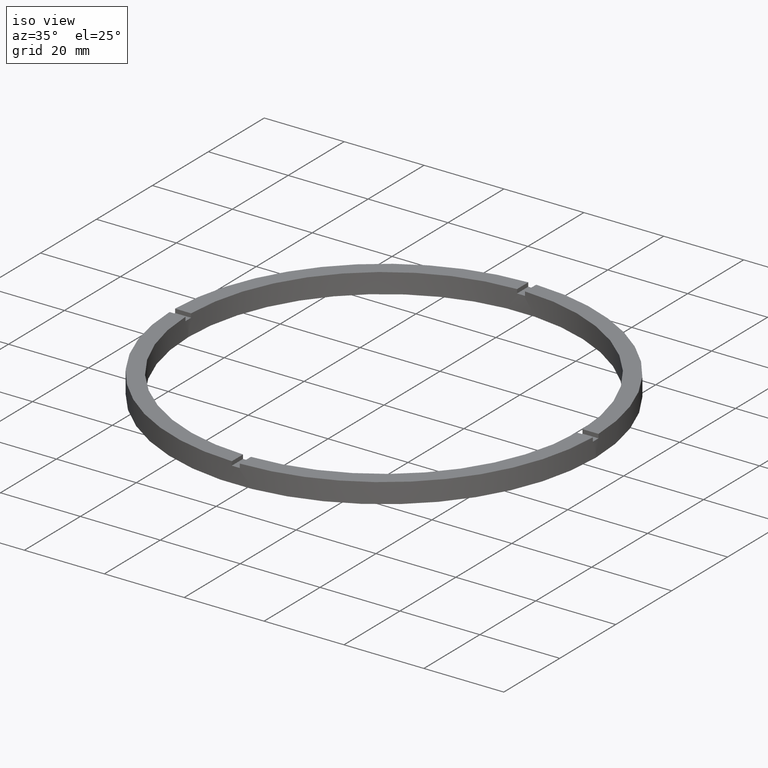
[diagram: clean part render]
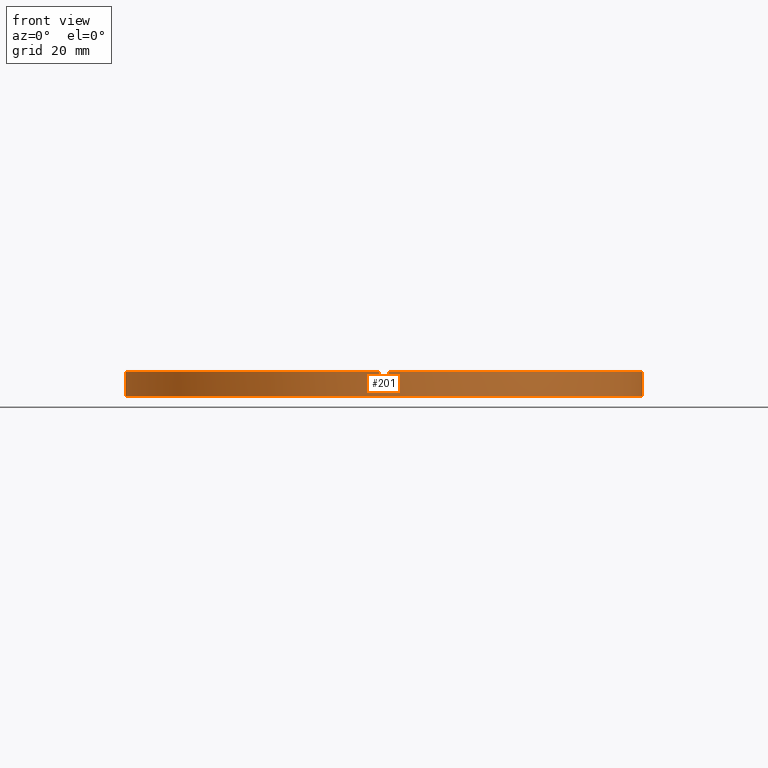
[diagram: tour spotlight — one face highlighted and labeled with its STEP entity id]
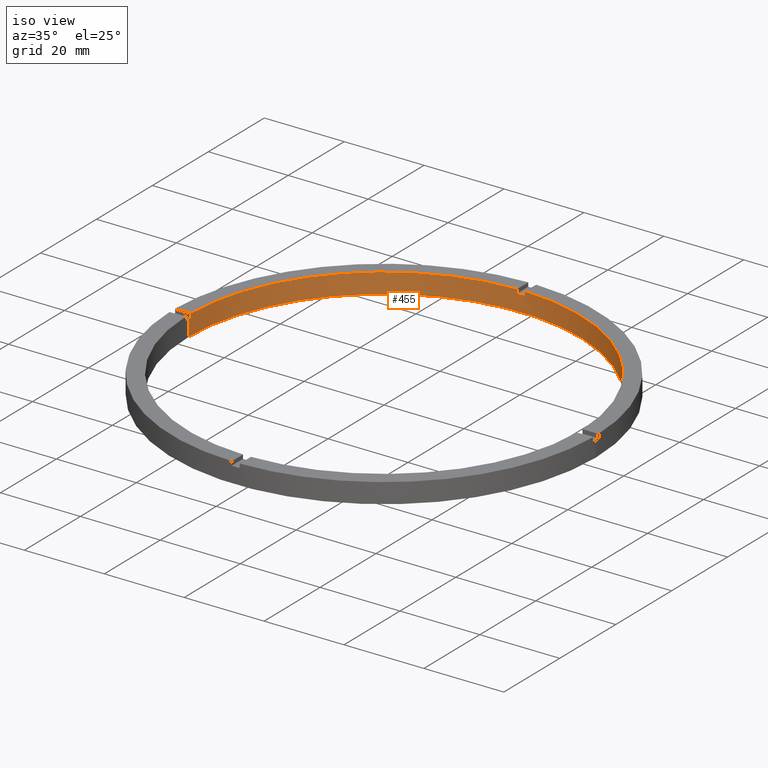
[diagram: tour spotlight — one face highlighted and labeled with its STEP entity id]
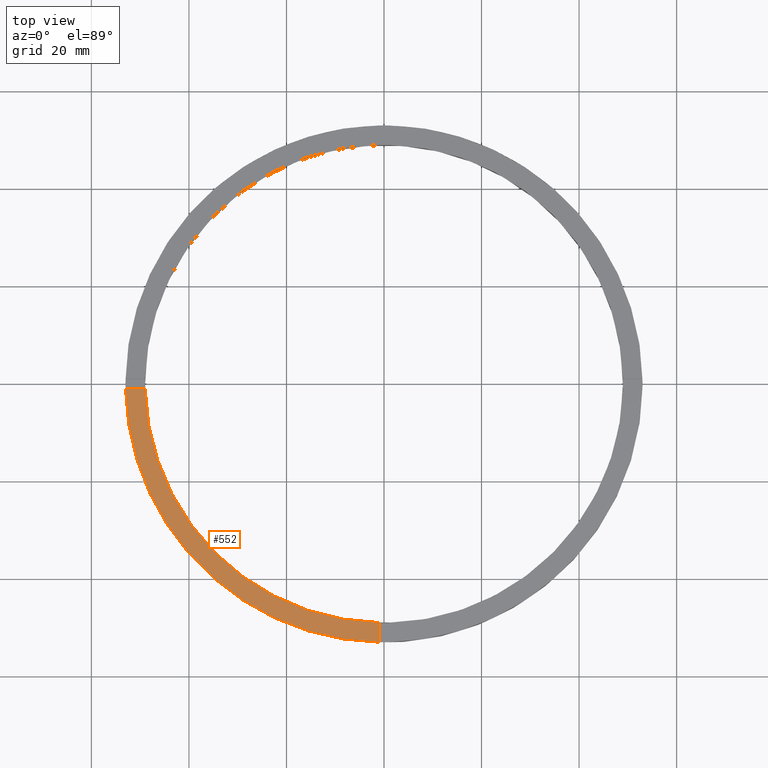
[diagram: tour spotlight — one face highlighted and labeled with its STEP entity id]
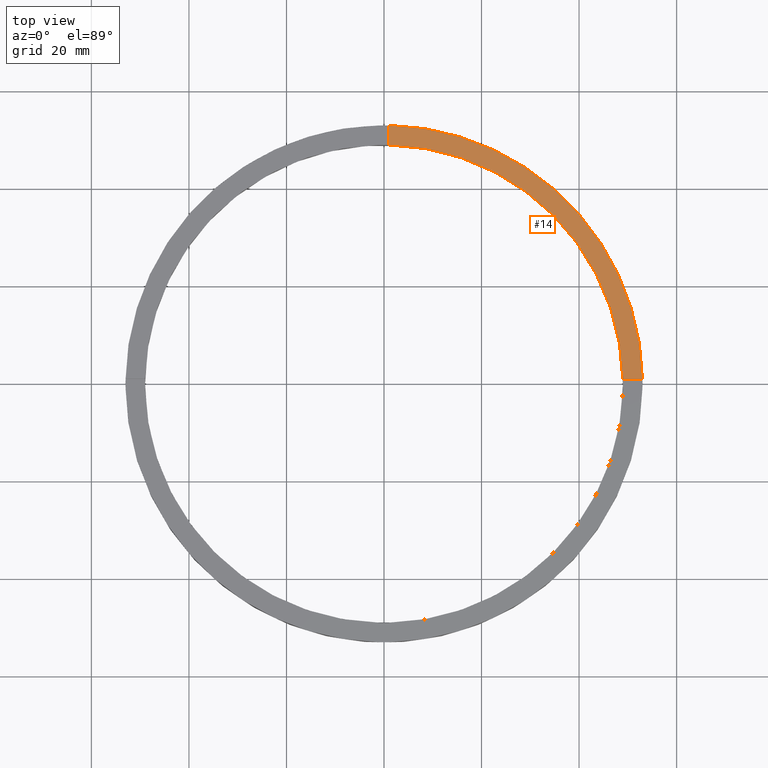
[diagram: tour spotlight — one face highlighted and labeled with its STEP entity id]
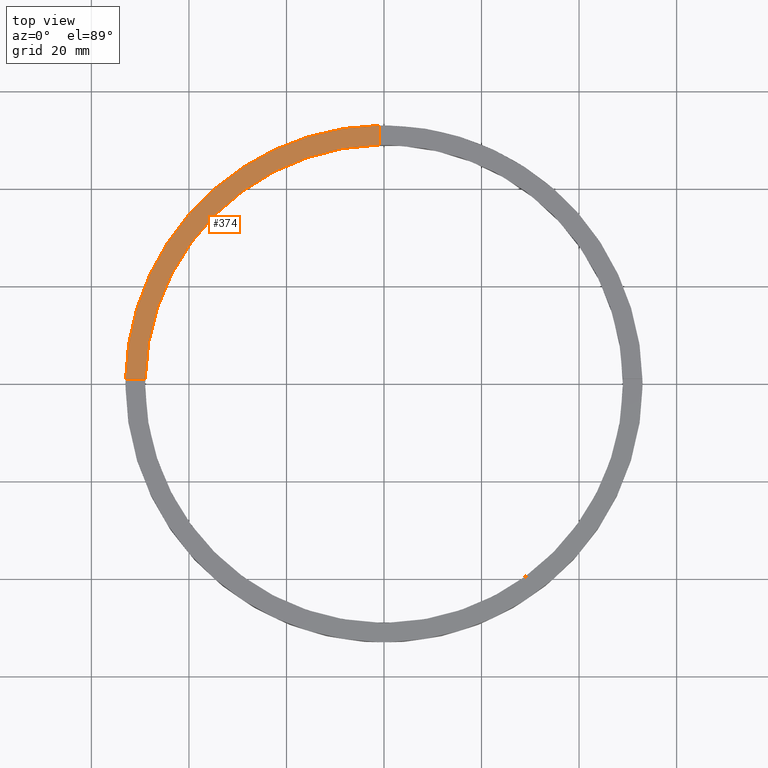
[diagram: tour spotlight — one face highlighted and labeled with its STEP entity id]
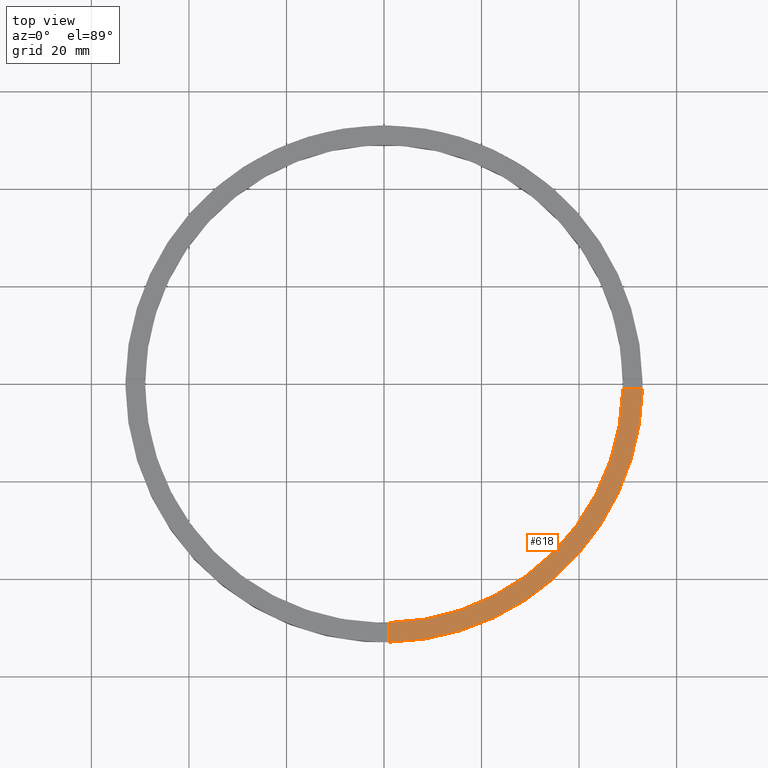
[diagram: tour spotlight — one face highlighted and labeled with its STEP entity id]
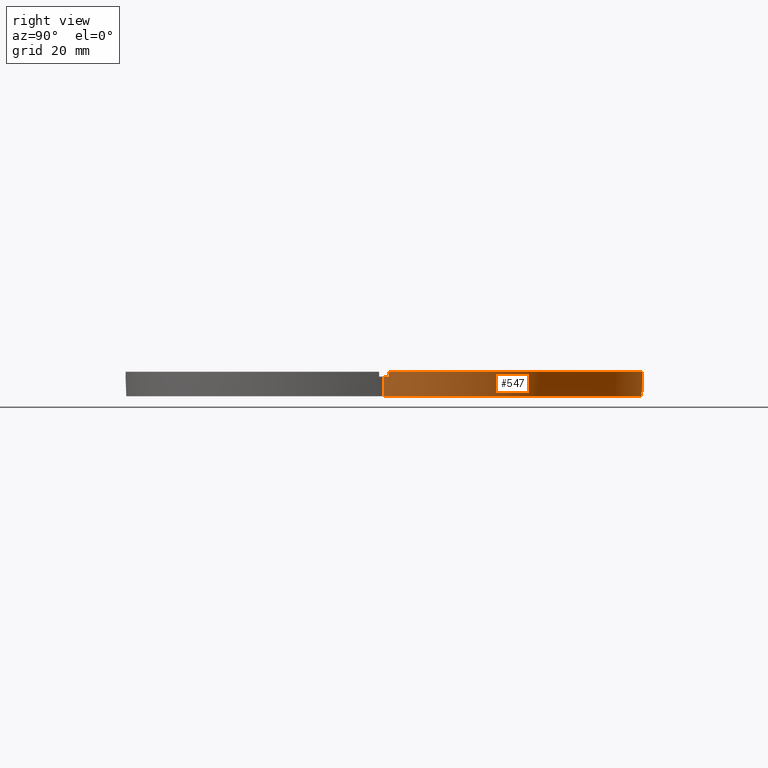
[diagram: tour spotlight — one face highlighted and labeled with its STEP entity id]
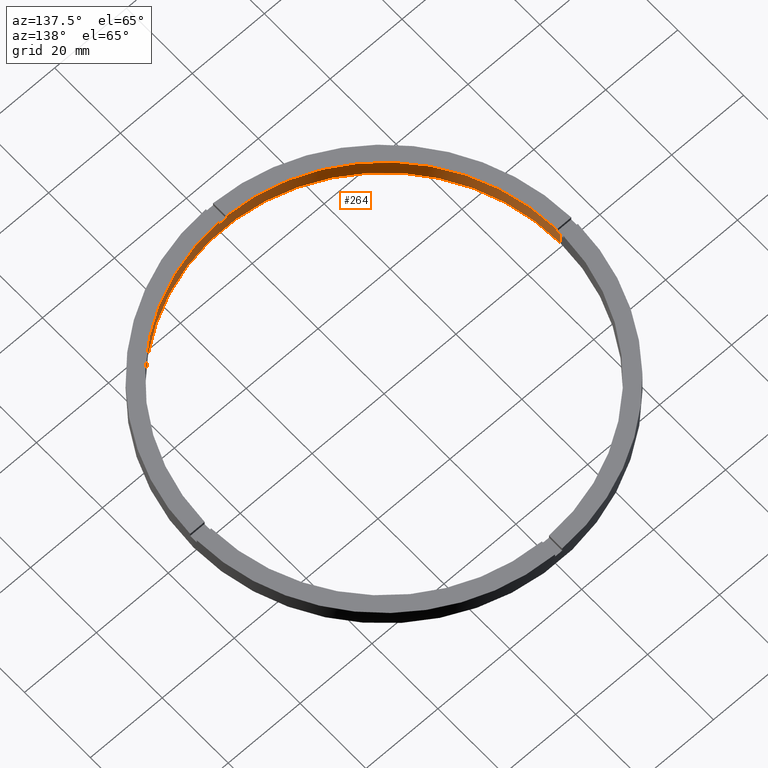
[diagram: tour spotlight — one face highlighted and labeled with its STEP entity id]
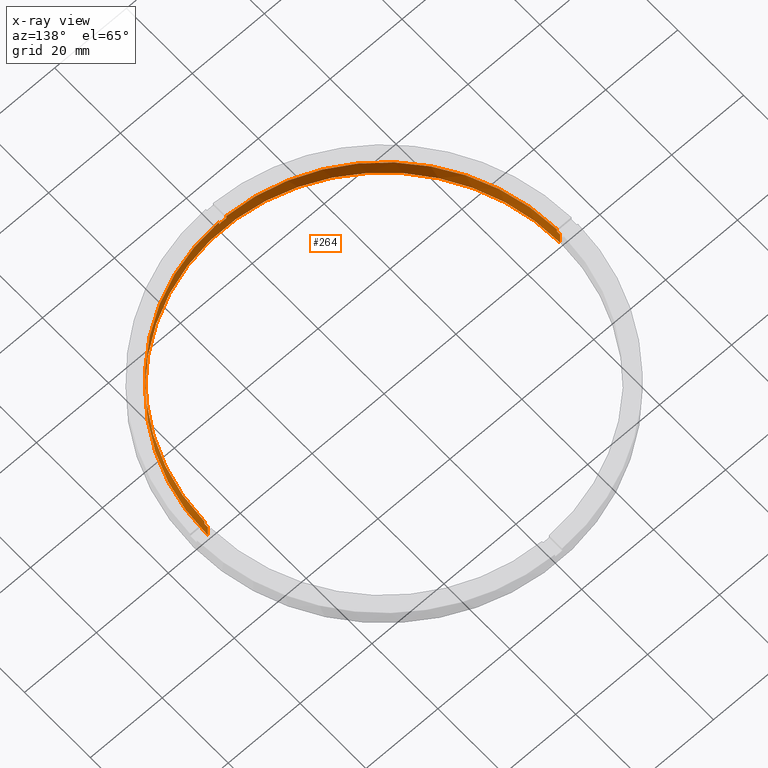
[diagram: x-ray of the same camera — body ghosted, this tour face saturated]
A machine part: a face-by-face anatomy tour. The part has 21 B-rep faces; the first image is the clean iso view, then the 8 largest visible faces are spotlighted one at a time (largest first), each with its STEP entity span.

Face 1 — front view, entity #201. In plain terms, the highlighted cylindrical surface (partial cylindrical patch) has radius 53 mm, axis along (-0, -0, -1).
Definition (entity closure, byte-faithful):
#5 = CARTESIAN_POINT ( 'NONE',  ( -52.99056519796708642, -1.000000000000032419, 4.000000000000000000 ) ) ;
#12 = CARTESIAN_POINT ( 'NONE',  ( 53.00000000000000711, 6.490628035480973107E-15, 4.000000000000000000 ) ) ;
#15 = EDGE_CURVE ( 'NONE', #193, #726, #308, .T. ) ;
#35 = CARTESIAN_POINT ( 'NONE',  ( -1.000000000000156097, -52.99056519796708642, 5.000000000000000000 ) ) ;
#47 = CARTESIAN_POINT ( 'NONE',  ( 0.000000000000000000, 0.000000000000000000, 4.000000000000000000 ) ) ;
#59 = CIRCLE ( 'NONE', #538, 53.00000000000000711 ) ;
#68 = CARTESIAN_POINT ( 'NONE',  ( -52.99056519796708642, -1.000000000000032419, 5.000000000000000000 ) ) ;
#69 = DIRECTION ( 'NONE',  ( -0.000000000000000000, -0.000000000000000000, -1.000000000000000000 ) ) ;
#78 = DIRECTION ( 'NONE',  ( -0.000000000000000000, 0.000000000000000000, 1.000000000000000000 ) ) ;
#84 = LINE ( 'NONE', #640, #89 ) ;
#87 = VECTOR ( 'NONE', #112, 1000.000000000000000 ) ;
#89 = VECTOR ( 'NONE', #69, 1000.000000000000000 ) ;
#111 = DIRECTION ( 'NONE',  ( 1.000000000000000000, 0.000000000000000000, 0.000000000000000000 ) ) ;
#112 = DIRECTION ( 'NONE',  ( 0.000000000000000000, 0.000000000000000000, 1.000000000000000000 ) ) ;
#113 = CARTESIAN_POINT ( 'NONE',  ( 53.00000000000000711, 6.490628035480973107E-15, 0.000000000000000000 ) ) ;
#114 = DIRECTION ( 'NONE',  ( 0.000000000000000000, 0.000000000000000000, 1.000000000000000000 ) ) ;
#131 = AXIS2_PLACEMENT_3D ( 'NONE', #533, #585, #111 ) ;
#136 = VERTEX_POINT ( 'NONE', #12 ) ;
#140 = VERTEX_POINT ( 'NONE', #205 ) ;
#158 = ORIENTED_EDGE ( 'NONE', *, *, #608, .F. ) ;
#160 = VERTEX_POINT ( 'NONE', #251 ) ;
#163 = ORIENTED_EDGE ( 'NONE', *, *, #340, .T. ) ;
#165 = VERTEX_POINT ( 'NONE', #113 ) ;
#171 = EDGE_CURVE ( 'NONE', #183, #136, #562, .T. ) ;
#173 = ORIENTED_EDGE ( 'NONE', *, *, #457, .F. ) ;
#176 = ORIENTED_EDGE ( 'NONE', *, *, #410, .T. ) ;
#183 = VERTEX_POINT ( 'NONE', #422 ) ;
#187 = AXIS2_PLACEMENT_3D ( 'NONE', #346, #487, #357 ) ;
#193 = VERTEX_POINT ( 'NONE', #494 ) ;
#196 = CARTESIAN_POINT ( 'NONE',  ( 0.9999999999998439026, -52.99056519796709352, 4.000000000000000000 ) ) ;
#201 = ADVANCED_FACE ( 'NONE', ( #571 ), #295, .T. ) ;
#204 = ORIENTED_EDGE ( 'NONE', *, *, #379, .T. ) ;
#205 = CARTESIAN_POINT ( 'NONE',  ( -1.000000000000156097, -52.99056519796708642, 4.000000000000000000 ) ) ;
#214 = VERTEX_POINT ( 'NONE', #549 ) ;
#224 = AXIS2_PLACEMENT_3D ( 'NONE', #280, #245, #595 ) ;
#238 = ORIENTED_EDGE ( 'NONE', *, *, #523, .F. ) ;
#241 = CARTESIAN_POINT ( 'NONE',  ( 0.000000000000000000, 0.000000000000000000, 0.000000000000000000 ) ) ;
#245 = DIRECTION ( 'NONE',  ( 0.000000000000000000, 0.000000000000000000, 1.000000000000000000 ) ) ;
#251 = CARTESIAN_POINT ( 'NONE',  ( 52.99056519796708642, -1.000000000000154543, 5.000000000000000000 ) ) ;
#277 = DIRECTION ( 'NONE',  ( 0.000000000000000000, 0.000000000000000000, 1.000000000000000000 ) ) ;
#280 = CARTESIAN_POINT ( 'NONE',  ( 0.000000000000000000, 0.000000000000000000, 5.000000000000000000 ) ) ;
#282 = LINE ( 'NONE', #644, #587 ) ;
#293 = CIRCLE ( 'NONE', #387, 53.00000000000000711 ) ;
#295 = CYLINDRICAL_SURFACE ( 'NONE', #427, 53.00000000000000711 ) ;
#298 = VECTOR ( 'NONE', #736, 1000.000000000000000 ) ;
#308 = LINE ( 'NONE', #779, #298 ) ;
#325 = CIRCLE ( 'NONE', #131, 53.00000000000000711 ) ;
#327 = LINE ( 'NONE', #453, #331 ) ;
#331 = VECTOR ( 'NONE', #277, 1000.000000000000000 ) ;
#340 = EDGE_CURVE ( 'NONE', #406, #481, #282, .T. ) ;
#341 = CIRCLE ( 'NONE', #224, 53.00000000000000711 ) ;
#346 = CARTESIAN_POINT ( 'NONE',  ( 0.000000000000000000, 0.000000000000000000, 5.000000000000000000 ) ) ;
#347 = VECTOR ( 'NONE', #620, 1000.000000000000000 ) ;
#357 = DIRECTION ( 'NONE',  ( 1.000000000000000000, 0.000000000000000000, 0.000000000000000000 ) ) ;
#370 = CARTESIAN_POINT ( 'NONE',  ( 0.000000000000000000, 0.000000000000000000, 5.000000000000000000 ) ) ;
#378 = AXIS2_PLACEMENT_3D ( 'NONE', #47, #114, #444 ) ;
#379 = EDGE_CURVE ( 'NONE', #726, #165, #293, .T. ) ;
#383 = EDGE_CURVE ( 'NONE', #140, #408, #622, .T. ) ;
#387 = AXIS2_PLACEMENT_3D ( 'NONE', #241, #597, #407 ) ;
#393 = CARTESIAN_POINT ( 'NONE',  ( 0.000000000000000000, 0.000000000000000000, 4.000000000000000000 ) ) ;
#396 = EDGE_LOOP ( 'NONE', ( #501, #431, #176, #758, #163, #238, #679, #173, #703, #158, #733, #204 ) ) ;
#402 = EDGE_CURVE ( 'NONE', #406, #160, #607, .T. ) ;
#406 = VERTEX_POINT ( 'NONE', #497 ) ;
#407 = DIRECTION ( 'NONE',  ( 1.000000000000000000, 0.000000000000000000, 0.000000000000000000 ) ) ;
#408 = VERTEX_POINT ( 'NONE', #429 ) ;
#410 = EDGE_CURVE ( 'NONE', #183, #160, #327, .T. ) ;
#422 = CARTESIAN_POINT ( 'NONE',  ( 52.99056519796708642, -1.000000000000154543, 4.000000000000000000 ) ) ;
#427 = AXIS2_PLACEMENT_3D ( 'NONE', #370, #606, #662 ) ;
#429 = CARTESIAN_POINT ( 'NONE',  ( -1.000000000000156097, -52.99056519796708642, 5.000000000000000000 ) ) ;
#431 = ORIENTED_EDGE ( 'NONE', *, *, #171, .F. ) ;
#444 = DIRECTION ( 'NONE',  ( 1.000000000000000000, 0.000000000000000000, 0.000000000000000000 ) ) ;
#453 = CARTESIAN_POINT ( 'NONE',  ( 52.99056519796708642, -1.000000000000154543, 5.000000000000000000 ) ) ;
#454 = VERTEX_POINT ( 'NONE', #5 ) ;
#456 = DIRECTION ( 'NONE',  ( 1.000000000000000000, 0.000000000000000000, 0.000000000000000000 ) ) ;
#457 = EDGE_CURVE ( 'NONE', #214, #408, #341, .T. ) ;
#481 = VERTEX_POINT ( 'NONE', #196 ) ;
#482 = DIRECTION ( 'NONE',  ( -0.000000000000000000, -0.000000000000000000, -1.000000000000000000 ) ) ;
#487 = DIRECTION ( 'NONE',  ( 0.000000000000000000, 0.000000000000000000, 1.000000000000000000 ) ) ;
#494 = CARTESIAN_POINT ( 'NONE',  ( -53.00000000000000711, 0.000000000000000000, 4.000000000000000000 ) ) ;
#497 = CARTESIAN_POINT ( 'NONE',  ( 0.9999999999998439026, -52.99056519796709352, 5.000000000000000000 ) ) ;
#501 = ORIENTED_EDGE ( 'NONE', *, *, #530, .F. ) ;
#523 = EDGE_CURVE ( 'NONE', #140, #481, #59, .T. ) ;
#530 = EDGE_CURVE ( 'NONE', #136, #165, #84, .T. ) ;
#533 = CARTESIAN_POINT ( 'NONE',  ( 0.000000000000000000, 0.000000000000000000, 4.000000000000000000 ) ) ;
#538 = AXIS2_PLACEMENT_3D ( 'NONE', #393, #78, #456 ) ;
#549 = CARTESIAN_POINT ( 'NONE',  ( -52.99056519796708642, -1.000000000000032419, 5.000000000000000000 ) ) ;
#562 = CIRCLE ( 'NONE', #378, 53.00000000000000711 ) ;
#571 = FACE_OUTER_BOUND ( 'NONE', #396, .T. ) ;
#585 = DIRECTION ( 'NONE',  ( 0.000000000000000000, 0.000000000000000000, 1.000000000000000000 ) ) ;
#587 = VECTOR ( 'NONE', #482, 1000.000000000000000 ) ;
#592 = LINE ( 'NONE', #68, #347 ) ;
#595 = DIRECTION ( 'NONE',  ( 1.000000000000000000, 0.000000000000000000, 0.000000000000000000 ) ) ;
#597 = DIRECTION ( 'NONE',  ( 0.000000000000000000, 0.000000000000000000, 1.000000000000000000 ) ) ;
#606 = DIRECTION ( 'NONE',  ( -0.000000000000000000, -0.000000000000000000, -1.000000000000000000 ) ) ;
#607 = CIRCLE ( 'NONE', #187, 53.00000000000000711 ) ;
#608 = EDGE_CURVE ( 'NONE', #193, #454, #325, .T. ) ;
#620 = DIRECTION ( 'NONE',  ( -0.000000000000000000, -0.000000000000000000, -1.000000000000000000 ) ) ;
#622 = LINE ( 'NONE', #35, #87 ) ;
#640 = CARTESIAN_POINT ( 'NONE',  ( 53.00000000000000711, 6.490628035480973107E-15, 5.000000000000000000 ) ) ;
#644 = CARTESIAN_POINT ( 'NONE',  ( 0.9999999999998439026, -52.99056519796709352, 5.000000000000000000 ) ) ;
#648 = CARTESIAN_POINT ( 'NONE',  ( -53.00000000000000711, 0.000000000000000000, 0.000000000000000000 ) ) ;
#662 = DIRECTION ( 'NONE',  ( -1.000000000000000000, 0.000000000000000000, 0.000000000000000000 ) ) ;
#679 = ORIENTED_EDGE ( 'NONE', *, *, #383, .T. ) ;
#703 = ORIENTED_EDGE ( 'NONE', *, *, #738, .T. ) ;
#726 = VERTEX_POINT ( 'NONE', #648 ) ;
#733 = ORIENTED_EDGE ( 'NONE', *, *, #15, .T. ) ;
#736 = DIRECTION ( 'NONE',  ( -0.000000000000000000, -0.000000000000000000, -1.000000000000000000 ) ) ;
#738 = EDGE_CURVE ( 'NONE', #214, #454, #592, .T. ) ;
#758 = ORIENTED_EDGE ( 'NONE', *, *, #402, .F. ) ;
#779 = CARTESIAN_POINT ( 'NONE',  ( -53.00000000000000711, 0.000000000000000000, 5.000000000000000000 ) ) ;

Face 2 — iso view, entity #455. In plain terms, the highlighted cylindrical surface (partial cylindrical patch) has radius 49 mm, axis along (-0, -0, -1).
Definition (entity closure, byte-faithful):
#3 = AXIS2_PLACEMENT_3D ( 'NONE', #536, #745, #184 ) ;
#8 = EDGE_CURVE ( 'NONE', #417, #686, #447, .T. ) ;
#9 = DIRECTION ( 'NONE',  ( 0.000000000000000000, 0.000000000000000000, 1.000000000000000000 ) ) ;
#26 = DIRECTION ( 'NONE',  ( -0.000000000000000000, -0.000000000000000000, -1.000000000000000000 ) ) ;
#36 = CIRCLE ( 'NONE', #532, 49.00000000000000000 ) ;
#40 = CARTESIAN_POINT ( 'NONE',  ( -1.000000000000027089, 48.98979485566356118, 4.000000000000000000 ) ) ;
#46 = VECTOR ( 'NONE', #655, 1000.000000000000000 ) ;
#48 = CIRCLE ( 'NONE', #759, 49.00000000000000000 ) ;
#49 = EDGE_CURVE ( 'NONE', #668, #697, #48, .T. ) ;
#57 = LINE ( 'NONE', #777, #314 ) ;
#70 = FACE_OUTER_BOUND ( 'NONE', #411, .T. ) ;
#75 = CIRCLE ( 'NONE', #234, 49.00000000000000000 ) ;
#85 = VECTOR ( 'NONE', #713, 1000.000000000000000 ) ;
#92 = EDGE_CURVE ( 'NONE', #240, #445, #299, .T. ) ;
#94 = LINE ( 'NONE', #221, #85 ) ;
#101 = CIRCLE ( 'NONE', #541, 49.00000000000000000 ) ;
#104 = EDGE_CURVE ( 'NONE', #772, #672, #570, .T. ) ;
#116 = EDGE_CURVE ( 'NONE', #686, #178, #565, .T. ) ;
#128 = DIRECTION ( 'NONE',  ( -0.000000000000000000, -0.000000000000000000, -1.000000000000000000 ) ) ;
#130 = EDGE_CURVE ( 'NONE', #739, #697, #576, .T. ) ;
#152 = VERTEX_POINT ( 'NONE', #540 ) ;
#167 = ORIENTED_EDGE ( 'NONE', *, *, #8, .T. ) ;
#168 = ORIENTED_EDGE ( 'NONE', *, *, #375, .T. ) ;
#178 = VERTEX_POINT ( 'NONE', #190 ) ;
#184 = DIRECTION ( 'NONE',  ( -1.000000000000000000, 0.000000000000000000, 0.000000000000000000 ) ) ;
#190 = CARTESIAN_POINT ( 'NONE',  ( -49.00000000000000000, 0.000000000000000000, 0.000000000000000000 ) ) ;
#206 = CARTESIAN_POINT ( 'NONE',  ( 0.000000000000000000, 0.000000000000000000, 5.000000000000000000 ) ) ;
#221 = CARTESIAN_POINT ( 'NONE',  ( -48.98979485566356118, 0.9999999999999685807, 5.000000000000000000 ) ) ;
#234 = AXIS2_PLACEMENT_3D ( 'NONE', #466, #480, #516 ) ;
#240 = VERTEX_POINT ( 'NONE', #673 ) ;
#252 = DIRECTION ( 'NONE',  ( 0.000000000000000000, 0.000000000000000000, 1.000000000000000000 ) ) ;
#256 = CARTESIAN_POINT ( 'NONE',  ( 0.000000000000000000, 0.000000000000000000, 4.000000000000000000 ) ) ;
#272 = EDGE_CURVE ( 'NONE', #668, #152, #57, .T. ) ;
#299 = LINE ( 'NONE', #518, #319 ) ;
#304 = VECTOR ( 'NONE', #774, 1000.000000000000000 ) ;
#311 = CARTESIAN_POINT ( 'NONE',  ( 0.9999999999999729106, 48.98979485566356118, 4.000000000000000000 ) ) ;
#313 = DIRECTION ( 'NONE',  ( 0.000000000000000000, 0.000000000000000000, 1.000000000000000000 ) ) ;
#314 = VECTOR ( 'NONE', #26, 1000.000000000000000 ) ;
#318 = CARTESIAN_POINT ( 'NONE',  ( -49.00000000000000000, 0.000000000000000000, 4.000000000000000000 ) ) ;
#319 = VECTOR ( 'NONE', #128, 1000.000000000000000 ) ;
#342 = DIRECTION ( 'NONE',  ( 1.000000000000000000, 0.000000000000000000, 0.000000000000000000 ) ) ;
#354 = CARTESIAN_POINT ( 'NONE',  ( -48.98979485566356118, 0.9999999999999685807, 4.000000000000000000 ) ) ;
#375 = EDGE_CURVE ( 'NONE', #739, #445, #36, .T. ) ;
#381 = CARTESIAN_POINT ( 'NONE',  ( 48.98979485566356828, 0.9999999999998452349, 5.000000000000000000 ) ) ;
#382 = CARTESIAN_POINT ( 'NONE',  ( 49.00000000000000000, 6.000769315822030937E-15, 5.000000000000000000 ) ) ;
#411 = EDGE_LOOP ( 'NONE', ( #473, #442, #770, #507, #715, #168, #438, #717, #432, #167, #428, #505 ) ) ;
#414 = AXIS2_PLACEMENT_3D ( 'NONE', #256, #743, #342 ) ;
#417 = VERTEX_POINT ( 'NONE', #354 ) ;
#428 = ORIENTED_EDGE ( 'NONE', *, *, #116, .T. ) ;
#432 = ORIENTED_EDGE ( 'NONE', *, *, #546, .F. ) ;
#438 = ORIENTED_EDGE ( 'NONE', *, *, #92, .F. ) ;
#442 = ORIENTED_EDGE ( 'NONE', *, *, #633, .T. ) ;
#445 = VERTEX_POINT ( 'NONE', #40 ) ;
#447 = CIRCLE ( 'NONE', #414, 49.00000000000000000 ) ;
#455 = ADVANCED_FACE ( 'NONE', ( #70 ), #610, .F. ) ;
#462 = VERTEX_POINT ( 'NONE', #782 ) ;
#466 = CARTESIAN_POINT ( 'NONE',  ( 0.000000000000000000, 0.000000000000000000, 0.000000000000000000 ) ) ;
#473 = ORIENTED_EDGE ( 'NONE', *, *, #104, .F. ) ;
#480 = DIRECTION ( 'NONE',  ( 0.000000000000000000, 0.000000000000000000, 1.000000000000000000 ) ) ;
#505 = ORIENTED_EDGE ( 'NONE', *, *, #525, .F. ) ;
#507 = ORIENTED_EDGE ( 'NONE', *, *, #49, .T. ) ;
#509 = CARTESIAN_POINT ( 'NONE',  ( 49.00000000000000000, 6.000769315822030937E-15, 0.000000000000000000 ) ) ;
#515 = DIRECTION ( 'NONE',  ( 1.000000000000000000, 0.000000000000000000, 0.000000000000000000 ) ) ;
#516 = DIRECTION ( 'NONE',  ( 1.000000000000000000, 0.000000000000000000, 0.000000000000000000 ) ) ;
#518 = CARTESIAN_POINT ( 'NONE',  ( -1.000000000000027089, 48.98979485566356118, 5.000000000000000000 ) ) ;
#525 = EDGE_CURVE ( 'NONE', #672, #178, #75, .T. ) ;
#526 = CARTESIAN_POINT ( 'NONE',  ( -49.00000000000000000, 0.000000000000000000, 5.000000000000000000 ) ) ;
#527 = CARTESIAN_POINT ( 'NONE',  ( 0.000000000000000000, 0.000000000000000000, 4.000000000000000000 ) ) ;
#532 = AXIS2_PLACEMENT_3D ( 'NONE', #652, #582, #658 ) ;
#535 = AXIS2_PLACEMENT_3D ( 'NONE', #527, #578, #654 ) ;
#536 = CARTESIAN_POINT ( 'NONE',  ( 0.000000000000000000, 0.000000000000000000, 5.000000000000000000 ) ) ;
#540 = CARTESIAN_POINT ( 'NONE',  ( 48.98979485566356828, 0.9999999999998452349, 4.000000000000000000 ) ) ;
#541 = AXIS2_PLACEMENT_3D ( 'NONE', #206, #252, #515 ) ;
#546 = EDGE_CURVE ( 'NONE', #417, #462, #94, .T. ) ;
#560 = CARTESIAN_POINT ( 'NONE',  ( 0.9999999999999729106, 48.98979485566356118, 5.000000000000000000 ) ) ;
#565 = LINE ( 'NONE', #526, #304 ) ;
#567 = VECTOR ( 'NONE', #9, 1000.000000000000000 ) ;
#570 = LINE ( 'NONE', #382, #46 ) ;
#576 = LINE ( 'NONE', #624, #567 ) ;
#578 = DIRECTION ( 'NONE',  ( 0.000000000000000000, 0.000000000000000000, 1.000000000000000000 ) ) ;
#582 = DIRECTION ( 'NONE',  ( 0.000000000000000000, -0.000000000000000000, 1.000000000000000000 ) ) ;
#602 = CIRCLE ( 'NONE', #535, 49.00000000000000000 ) ;
#610 = CYLINDRICAL_SURFACE ( 'NONE', #3, 49.00000000000000000 ) ;
#624 = CARTESIAN_POINT ( 'NONE',  ( 0.9999999999999729106, 48.98979485566356118, 5.000000000000000000 ) ) ;
#629 = CARTESIAN_POINT ( 'NONE',  ( 0.000000000000000000, 0.000000000000000000, 5.000000000000000000 ) ) ;
#633 = EDGE_CURVE ( 'NONE', #772, #152, #602, .T. ) ;
#652 = CARTESIAN_POINT ( 'NONE',  ( 0.000000000000000000, 0.000000000000000000, 4.000000000000000000 ) ) ;
#654 = DIRECTION ( 'NONE',  ( 1.000000000000000000, 0.000000000000000000, 0.000000000000000000 ) ) ;
#655 = DIRECTION ( 'NONE',  ( -0.000000000000000000, -0.000000000000000000, -1.000000000000000000 ) ) ;
#658 = DIRECTION ( 'NONE',  ( 1.000000000000000000, 0.000000000000000000, 0.000000000000000000 ) ) ;
#668 = VERTEX_POINT ( 'NONE', #381 ) ;
#672 = VERTEX_POINT ( 'NONE', #509 ) ;
#673 = CARTESIAN_POINT ( 'NONE',  ( -1.000000000000027089, 48.98979485566356118, 5.000000000000000000 ) ) ;
#683 = CARTESIAN_POINT ( 'NONE',  ( 49.00000000000000000, 6.000769315822030937E-15, 4.000000000000000000 ) ) ;
#686 = VERTEX_POINT ( 'NONE', #318 ) ;
#697 = VERTEX_POINT ( 'NONE', #560 ) ;
#713 = DIRECTION ( 'NONE',  ( 0.000000000000000000, 0.000000000000000000, 1.000000000000000000 ) ) ;
#715 = ORIENTED_EDGE ( 'NONE', *, *, #130, .F. ) ;
#717 = ORIENTED_EDGE ( 'NONE', *, *, #734, .T. ) ;
#734 = EDGE_CURVE ( 'NONE', #240, #462, #101, .T. ) ;
#739 = VERTEX_POINT ( 'NONE', #311 ) ;
#743 = DIRECTION ( 'NONE',  ( 0.000000000000000000, 0.000000000000000000, 1.000000000000000000 ) ) ;
#745 = DIRECTION ( 'NONE',  ( -0.000000000000000000, -0.000000000000000000, -1.000000000000000000 ) ) ;
#759 = AXIS2_PLACEMENT_3D ( 'NONE', #629, #313, #763 ) ;
#763 = DIRECTION ( 'NONE',  ( 1.000000000000000000, 0.000000000000000000, 0.000000000000000000 ) ) ;
#770 = ORIENTED_EDGE ( 'NONE', *, *, #272, .F. ) ;
#772 = VERTEX_POINT ( 'NONE', #683 ) ;
#774 = DIRECTION ( 'NONE',  ( -0.000000000000000000, -0.000000000000000000, -1.000000000000000000 ) ) ;
#777 = CARTESIAN_POINT ( 'NONE',  ( 48.98979485566356828, 0.9999999999998452349, 5.000000000000000000 ) ) ;
#782 = CARTESIAN_POINT ( 'NONE',  ( -48.98979485566356118, 0.9999999999999685807, 5.000000000000000000 ) ) ;

Face 3 — top view, entity #552. In plain terms, the highlighted planar face has unit normal (0, 0, 1).
Definition (entity closure, byte-faithful):
#17 = DIRECTION ( 'NONE',  ( 1.000000000000000000, 0.000000000000000000, -0.000000000000000000 ) ) ;
#28 = CIRCLE ( 'NONE', #531, 49.00000000000000000 ) ;
#37 = LINE ( 'NONE', #768, #291 ) ;
#55 = LINE ( 'NONE', #391, #590 ) ;
#71 = DIRECTION ( 'NONE',  ( 1.000000000000000000, 1.951563910473907735E-16, -0.000000000000000000 ) ) ;
#79 = EDGE_CURVE ( 'NONE', #214, #192, #37, .T. ) ;
#157 = ORIENTED_EDGE ( 'NONE', *, *, #286, .F. ) ;
#162 = DIRECTION ( 'NONE',  ( 1.301042606982605074E-16, -1.000000000000000000, 0.000000000000000000 ) ) ;
#180 = ORIENTED_EDGE ( 'NONE', *, *, #246, .F. ) ;
#192 = VERTEX_POINT ( 'NONE', #499 ) ;
#210 = ORIENTED_EDGE ( 'NONE', *, *, #457, .T. ) ;
#214 = VERTEX_POINT ( 'NONE', #549 ) ;
#215 = PLANE ( 'NONE',  #510 ) ;
#224 = AXIS2_PLACEMENT_3D ( 'NONE', #280, #245, #595 ) ;
#245 = DIRECTION ( 'NONE',  ( 0.000000000000000000, 0.000000000000000000, 1.000000000000000000 ) ) ;
#246 = EDGE_CURVE ( 'NONE', #192, #400, #28, .T. ) ;
#258 = DIRECTION ( 'NONE',  ( 0.000000000000000000, 0.000000000000000000, 1.000000000000000000 ) ) ;
#280 = CARTESIAN_POINT ( 'NONE',  ( 0.000000000000000000, 0.000000000000000000, 5.000000000000000000 ) ) ;
#286 = EDGE_CURVE ( 'NONE', #400, #408, #55, .T. ) ;
#291 = VECTOR ( 'NONE', #71, 1000.000000000000000 ) ;
#322 = FACE_OUTER_BOUND ( 'NONE', #463, .T. ) ;
#341 = CIRCLE ( 'NONE', #224, 53.00000000000000711 ) ;
#391 = CARTESIAN_POINT ( 'NONE',  ( -1.000000000000157430, -43.00000000000018474, 5.000000000000000000 ) ) ;
#400 = VERTEX_POINT ( 'NONE', #663 ) ;
#408 = VERTEX_POINT ( 'NONE', #429 ) ;
#429 = CARTESIAN_POINT ( 'NONE',  ( -1.000000000000156097, -52.99056519796708642, 5.000000000000000000 ) ) ;
#457 = EDGE_CURVE ( 'NONE', #214, #408, #341, .T. ) ;
#463 = EDGE_LOOP ( 'NONE', ( #157, #180, #693, #210 ) ) ;
#499 = CARTESIAN_POINT ( 'NONE',  ( -48.98979485566356118, -1.000000000000031530, 5.000000000000000000 ) ) ;
#510 = AXIS2_PLACEMENT_3D ( 'NONE', #767, #258, #17 ) ;
#531 = AXIS2_PLACEMENT_3D ( 'NONE', #545, #616, #681 ) ;
#545 = CARTESIAN_POINT ( 'NONE',  ( 0.000000000000000000, 0.000000000000000000, 5.000000000000000000 ) ) ;
#549 = CARTESIAN_POINT ( 'NONE',  ( -52.99056519796708642, -1.000000000000032419, 5.000000000000000000 ) ) ;
#552 = ADVANCED_FACE ( 'NONE', ( #322 ), #215, .T. ) ;
#590 = VECTOR ( 'NONE', #162, 1000.000000000000000 ) ;
#595 = DIRECTION ( 'NONE',  ( 1.000000000000000000, 0.000000000000000000, 0.000000000000000000 ) ) ;
#616 = DIRECTION ( 'NONE',  ( 0.000000000000000000, 0.000000000000000000, 1.000000000000000000 ) ) ;
#663 = CARTESIAN_POINT ( 'NONE',  ( -1.000000000000156763, -48.98979485566356118, 5.000000000000000000 ) ) ;
#681 = DIRECTION ( 'NONE',  ( 1.000000000000000000, 0.000000000000000000, 0.000000000000000000 ) ) ;
#693 = ORIENTED_EDGE ( 'NONE', *, *, #79, .F. ) ;
#767 = CARTESIAN_POINT ( 'NONE',  ( 0.000000000000000000, 0.000000000000000000, 5.000000000000000000 ) ) ;
#768 = CARTESIAN_POINT ( 'NONE',  ( -43.00000000000019185, -1.000000000000030420, 5.000000000000000000 ) ) ;

Face 4 — top view, entity #14. In plain terms, the highlighted planar face has unit normal (0, 0, 1).
Definition (entity closure, byte-faithful):
#14 = ADVANCED_FACE ( 'NONE', ( #724 ), #534, .T. ) ;
#42 = EDGE_CURVE ( 'NONE', #169, #143, #53, .T. ) ;
#48 = CIRCLE ( 'NONE', #759, 49.00000000000000000 ) ;
#49 = EDGE_CURVE ( 'NONE', #668, #697, #48, .T. ) ;
#53 = CIRCLE ( 'NONE', #222, 53.00000000000000711 ) ;
#74 = LINE ( 'NONE', #134, #83 ) ;
#83 = VECTOR ( 'NONE', #690, 1000.000000000000000 ) ;
#96 = LINE ( 'NONE', #213, #359 ) ;
#134 = CARTESIAN_POINT ( 'NONE',  ( 43.00000000000000000, 0.9999999999998447908, 5.000000000000000000 ) ) ;
#143 = VERTEX_POINT ( 'NONE', #355 ) ;
#169 = VERTEX_POINT ( 'NONE', #376 ) ;
#213 = CARTESIAN_POINT ( 'NONE',  ( 0.9999999999999729106, 43.00000000000000000, 5.000000000000000000 ) ) ;
#219 = ORIENTED_EDGE ( 'NONE', *, *, #675, .F. ) ;
#222 = AXIS2_PLACEMENT_3D ( 'NONE', #573, #305, #650 ) ;
#305 = DIRECTION ( 'NONE',  ( 0.000000000000000000, 0.000000000000000000, 1.000000000000000000 ) ) ;
#313 = DIRECTION ( 'NONE',  ( 0.000000000000000000, 0.000000000000000000, 1.000000000000000000 ) ) ;
#355 = CARTESIAN_POINT ( 'NONE',  ( 0.9999999999999729106, 52.99056519796708642, 5.000000000000000000 ) ) ;
#359 = VECTOR ( 'NONE', #388, 1000.000000000000000 ) ;
#376 = CARTESIAN_POINT ( 'NONE',  ( 52.99056519796709352, 0.9999999999998454570, 5.000000000000000000 ) ) ;
#381 = CARTESIAN_POINT ( 'NONE',  ( 48.98979485566356828, 0.9999999999998452349, 5.000000000000000000 ) ) ;
#388 = DIRECTION ( 'NONE',  ( 0.000000000000000000, 1.000000000000000000, 0.000000000000000000 ) ) ;
#439 = ORIENTED_EDGE ( 'NONE', *, *, #42, .T. ) ;
#441 = ORIENTED_EDGE ( 'NONE', *, *, #49, .F. ) ;
#471 = AXIS2_PLACEMENT_3D ( 'NONE', #586, #660, #528 ) ;
#495 = ORIENTED_EDGE ( 'NONE', *, *, #780, .F. ) ;
#528 = DIRECTION ( 'NONE',  ( 1.000000000000000000, 0.000000000000000000, -0.000000000000000000 ) ) ;
#534 = PLANE ( 'NONE',  #471 ) ;
#560 = CARTESIAN_POINT ( 'NONE',  ( 0.9999999999999729106, 48.98979485566356118, 5.000000000000000000 ) ) ;
#573 = CARTESIAN_POINT ( 'NONE',  ( 0.000000000000000000, 0.000000000000000000, 5.000000000000000000 ) ) ;
#586 = CARTESIAN_POINT ( 'NONE',  ( 0.000000000000000000, 0.000000000000000000, 5.000000000000000000 ) ) ;
#629 = CARTESIAN_POINT ( 'NONE',  ( 0.000000000000000000, 0.000000000000000000, 5.000000000000000000 ) ) ;
#650 = DIRECTION ( 'NONE',  ( 1.000000000000000000, 0.000000000000000000, 0.000000000000000000 ) ) ;
#660 = DIRECTION ( 'NONE',  ( 0.000000000000000000, 0.000000000000000000, 1.000000000000000000 ) ) ;
#668 = VERTEX_POINT ( 'NONE', #381 ) ;
#675 = EDGE_CURVE ( 'NONE', #169, #668, #74, .T. ) ;
#690 = DIRECTION ( 'NONE',  ( -1.000000000000000000, -6.505213034913025371E-17, -0.000000000000000000 ) ) ;
#697 = VERTEX_POINT ( 'NONE', #560 ) ;
#724 = FACE_OUTER_BOUND ( 'NONE', #741, .T. ) ;
#741 = EDGE_LOOP ( 'NONE', ( #495, #441, #219, #439 ) ) ;
#759 = AXIS2_PLACEMENT_3D ( 'NONE', #629, #313, #763 ) ;
#763 = DIRECTION ( 'NONE',  ( 1.000000000000000000, 0.000000000000000000, 0.000000000000000000 ) ) ;
#780 = EDGE_CURVE ( 'NONE', #697, #143, #96, .T. ) ;

Face 5 — top view, entity #374. In plain terms, the highlighted planar face has unit normal (0, 0, 1).
Definition (entity closure, byte-faithful):
#6 = CARTESIAN_POINT ( 'NONE',  ( -1.000000000000027089, 43.00000000000000000, 5.000000000000000000 ) ) ;
#31 = CARTESIAN_POINT ( 'NONE',  ( -43.00000000000019185, 0.9999999999999696909, 5.000000000000000000 ) ) ;
#38 = EDGE_CURVE ( 'NONE', #195, #742, #579, .T. ) ;
#43 = LINE ( 'NONE', #6, #288 ) ;
#82 = CARTESIAN_POINT ( 'NONE',  ( 0.000000000000000000, 0.000000000000000000, 5.000000000000000000 ) ) ;
#101 = CIRCLE ( 'NONE', #541, 49.00000000000000000 ) ;
#119 = AXIS2_PLACEMENT_3D ( 'NONE', #514, #233, #569 ) ;
#121 = CARTESIAN_POINT ( 'NONE',  ( -52.99056519796708642, 0.9999999999999676925, 5.000000000000000000 ) ) ;
#142 = EDGE_LOOP ( 'NONE', ( #491, #435, #409, #170 ) ) ;
#147 = DIRECTION ( 'NONE',  ( 0.000000000000000000, 0.000000000000000000, 1.000000000000000000 ) ) ;
#170 = ORIENTED_EDGE ( 'NONE', *, *, #734, .F. ) ;
#179 = DIRECTION ( 'NONE',  ( -0.000000000000000000, -1.000000000000000000, -0.000000000000000000 ) ) ;
#195 = VERTEX_POINT ( 'NONE', #244 ) ;
#206 = CARTESIAN_POINT ( 'NONE',  ( 0.000000000000000000, 0.000000000000000000, 5.000000000000000000 ) ) ;
#207 = EDGE_CURVE ( 'NONE', #195, #240, #43, .T. ) ;
#233 = DIRECTION ( 'NONE',  ( 0.000000000000000000, 0.000000000000000000, 1.000000000000000000 ) ) ;
#240 = VERTEX_POINT ( 'NONE', #673 ) ;
#244 = CARTESIAN_POINT ( 'NONE',  ( -1.000000000000027089, 52.99056519796708642, 5.000000000000000000 ) ) ;
#252 = DIRECTION ( 'NONE',  ( 0.000000000000000000, 0.000000000000000000, 1.000000000000000000 ) ) ;
#262 = EDGE_CURVE ( 'NONE', #462, #742, #281, .T. ) ;
#281 = LINE ( 'NONE', #31, #285 ) ;
#285 = VECTOR ( 'NONE', #765, 1000.000000000000000 ) ;
#288 = VECTOR ( 'NONE', #179, 1000.000000000000000 ) ;
#292 = FACE_OUTER_BOUND ( 'NONE', #142, .T. ) ;
#374 = ADVANCED_FACE ( 'NONE', ( #292 ), #522, .T. ) ;
#409 = ORIENTED_EDGE ( 'NONE', *, *, #262, .F. ) ;
#435 = ORIENTED_EDGE ( 'NONE', *, *, #38, .T. ) ;
#458 = DIRECTION ( 'NONE',  ( 1.000000000000000000, 0.000000000000000000, 0.000000000000000000 ) ) ;
#462 = VERTEX_POINT ( 'NONE', #782 ) ;
#491 = ORIENTED_EDGE ( 'NONE', *, *, #207, .F. ) ;
#514 = CARTESIAN_POINT ( 'NONE',  ( 0.000000000000000000, 0.000000000000000000, 5.000000000000000000 ) ) ;
#515 = DIRECTION ( 'NONE',  ( 1.000000000000000000, 0.000000000000000000, 0.000000000000000000 ) ) ;
#522 = PLANE ( 'NONE',  #119 ) ;
#541 = AXIS2_PLACEMENT_3D ( 'NONE', #206, #252, #515 ) ;
#569 = DIRECTION ( 'NONE',  ( 1.000000000000000000, 0.000000000000000000, -0.000000000000000000 ) ) ;
#579 = CIRCLE ( 'NONE', #591, 53.00000000000000711 ) ;
#591 = AXIS2_PLACEMENT_3D ( 'NONE', #82, #147, #458 ) ;
#673 = CARTESIAN_POINT ( 'NONE',  ( -1.000000000000027089, 48.98979485566356118, 5.000000000000000000 ) ) ;
#734 = EDGE_CURVE ( 'NONE', #240, #462, #101, .T. ) ;
#742 = VERTEX_POINT ( 'NONE', #121 ) ;
#765 = DIRECTION ( 'NONE',  ( -1.000000000000000000, -1.951563910473907735E-16, 0.000000000000000000 ) ) ;
#782 = CARTESIAN_POINT ( 'NONE',  ( -48.98979485566356118, 0.9999999999999685807, 5.000000000000000000 ) ) ;

Face 6 — top view, entity #618. In plain terms, the highlighted planar face has unit normal (0, 0, 1).
Definition (entity closure, byte-faithful):
#2 = CARTESIAN_POINT ( 'NONE',  ( 0.000000000000000000, 0.000000000000000000, 5.000000000000000000 ) ) ;
#20 = DIRECTION ( 'NONE',  ( 1.000000000000000000, 6.505213034913025371E-17, 0.000000000000000000 ) ) ;
#34 = VECTOR ( 'NONE', #20, 1000.000000000000000 ) ;
#52 = DIRECTION ( 'NONE',  ( 0.000000000000000000, 0.000000000000000000, 1.000000000000000000 ) ) ;
#56 = LINE ( 'NONE', #529, #34 ) ;
#76 = CARTESIAN_POINT ( 'NONE',  ( 0.9999999999998425704, -43.00000000000018474, 5.000000000000000000 ) ) ;
#81 = VECTOR ( 'NONE', #520, 1000.000000000000000 ) ;
#115 = DIRECTION ( 'NONE',  ( 1.000000000000000000, 0.000000000000000000, 0.000000000000000000 ) ) ;
#145 = ORIENTED_EDGE ( 'NONE', *, *, #402, .T. ) ;
#146 = VERTEX_POINT ( 'NONE', #744 ) ;
#160 = VERTEX_POINT ( 'NONE', #251 ) ;
#172 = ORIENTED_EDGE ( 'NONE', *, *, #345, .F. ) ;
#187 = AXIS2_PLACEMENT_3D ( 'NONE', #346, #487, #357 ) ;
#237 = ORIENTED_EDGE ( 'NONE', *, *, #470, .F. ) ;
#251 = CARTESIAN_POINT ( 'NONE',  ( 52.99056519796708642, -1.000000000000154543, 5.000000000000000000 ) ) ;
#257 = CARTESIAN_POINT ( 'NONE',  ( 48.98979485566356118, -1.000000000000154765, 5.000000000000000000 ) ) ;
#336 = FACE_OUTER_BOUND ( 'NONE', #722, .T. ) ;
#338 = LINE ( 'NONE', #76, #81 ) ;
#344 = CIRCLE ( 'NONE', #593, 49.00000000000000000 ) ;
#345 = EDGE_CURVE ( 'NONE', #732, #160, #56, .T. ) ;
#346 = CARTESIAN_POINT ( 'NONE',  ( 0.000000000000000000, 0.000000000000000000, 5.000000000000000000 ) ) ;
#357 = DIRECTION ( 'NONE',  ( 1.000000000000000000, 0.000000000000000000, 0.000000000000000000 ) ) ;
#398 = PLANE ( 'NONE',  #609 ) ;
#402 = EDGE_CURVE ( 'NONE', #406, #160, #607, .T. ) ;
#406 = VERTEX_POINT ( 'NONE', #497 ) ;
#470 = EDGE_CURVE ( 'NONE', #146, #732, #344, .T. ) ;
#477 = DIRECTION ( 'NONE',  ( 1.000000000000000000, 0.000000000000000000, -0.000000000000000000 ) ) ;
#487 = DIRECTION ( 'NONE',  ( 0.000000000000000000, 0.000000000000000000, 1.000000000000000000 ) ) ;
#497 = CARTESIAN_POINT ( 'NONE',  ( 0.9999999999998439026, -52.99056519796709352, 5.000000000000000000 ) ) ;
#520 = DIRECTION ( 'NONE',  ( -1.301042606982605074E-16, 1.000000000000000000, -0.000000000000000000 ) ) ;
#524 = DIRECTION ( 'NONE',  ( 0.000000000000000000, 0.000000000000000000, 1.000000000000000000 ) ) ;
#529 = CARTESIAN_POINT ( 'NONE',  ( 43.00000000000000000, -1.000000000000155209, 5.000000000000000000 ) ) ;
#593 = AXIS2_PLACEMENT_3D ( 'NONE', #2, #52, #115 ) ;
#607 = CIRCLE ( 'NONE', #187, 53.00000000000000711 ) ;
#609 = AXIS2_PLACEMENT_3D ( 'NONE', #729, #524, #477 ) ;
#618 = ADVANCED_FACE ( 'NONE', ( #336 ), #398, .T. ) ;
#659 = EDGE_CURVE ( 'NONE', #406, #146, #338, .T. ) ;
#716 = ORIENTED_EDGE ( 'NONE', *, *, #659, .F. ) ;
#722 = EDGE_LOOP ( 'NONE', ( #172, #237, #716, #145 ) ) ;
#729 = CARTESIAN_POINT ( 'NONE',  ( 0.000000000000000000, 0.000000000000000000, 5.000000000000000000 ) ) ;
#732 = VERTEX_POINT ( 'NONE', #257 ) ;
#744 = CARTESIAN_POINT ( 'NONE',  ( 0.9999999999998432365, -48.98979485566356828, 5.000000000000000000 ) ) ;

Face 7 — right view, entity #547. In plain terms, the highlighted cylindrical surface (partial cylindrical patch) has radius 53 mm, axis along (-0, -0, -1).
Definition (entity closure, byte-faithful):
#12 = CARTESIAN_POINT ( 'NONE',  ( 53.00000000000000711, 6.490628035480973107E-15, 4.000000000000000000 ) ) ;
#13 = DIRECTION ( 'NONE',  ( 0.000000000000000000, 0.000000000000000000, 1.000000000000000000 ) ) ;
#15 = EDGE_CURVE ( 'NONE', #193, #726, #308, .T. ) ;
#29 = DIRECTION ( 'NONE',  ( 1.000000000000000000, 0.000000000000000000, 0.000000000000000000 ) ) ;
#38 = EDGE_CURVE ( 'NONE', #195, #742, #579, .T. ) ;
#42 = EDGE_CURVE ( 'NONE', #169, #143, #53, .T. ) ;
#53 = CIRCLE ( 'NONE', #222, 53.00000000000000711 ) ;
#64 = AXIS2_PLACEMENT_3D ( 'NONE', #255, #243, #278 ) ;
#69 = DIRECTION ( 'NONE',  ( -0.000000000000000000, -0.000000000000000000, -1.000000000000000000 ) ) ;
#82 = CARTESIAN_POINT ( 'NONE',  ( 0.000000000000000000, 0.000000000000000000, 5.000000000000000000 ) ) ;
#84 = LINE ( 'NONE', #640, #89 ) ;
#89 = VECTOR ( 'NONE', #69, 1000.000000000000000 ) ;
#98 = FACE_OUTER_BOUND ( 'NONE', #467, .T. ) ;
#113 = CARTESIAN_POINT ( 'NONE',  ( 53.00000000000000711, 6.490628035480973107E-15, 0.000000000000000000 ) ) ;
#117 = ORIENTED_EDGE ( 'NONE', *, *, #641, .F. ) ;
#121 = CARTESIAN_POINT ( 'NONE',  ( -52.99056519796708642, 0.9999999999999676925, 5.000000000000000000 ) ) ;
#126 = DIRECTION ( 'NONE',  ( -1.000000000000000000, 0.000000000000000000, 0.000000000000000000 ) ) ;
#135 = DIRECTION ( 'NONE',  ( 0.000000000000000000, 0.000000000000000000, 1.000000000000000000 ) ) ;
#136 = VERTEX_POINT ( 'NONE', #12 ) ;
#143 = VERTEX_POINT ( 'NONE', #355 ) ;
#147 = DIRECTION ( 'NONE',  ( 0.000000000000000000, 0.000000000000000000, 1.000000000000000000 ) ) ;
#150 = VERTEX_POINT ( 'NONE', #544 ) ;
#151 = ORIENTED_EDGE ( 'NONE', *, *, #492, .F. ) ;
#165 = VERTEX_POINT ( 'NONE', #113 ) ;
#166 = ORIENTED_EDGE ( 'NONE', *, *, #290, .T. ) ;
#169 = VERTEX_POINT ( 'NONE', #376 ) ;
#193 = VERTEX_POINT ( 'NONE', #494 ) ;
#195 = VERTEX_POINT ( 'NONE', #244 ) ;
#202 = ORIENTED_EDGE ( 'NONE', *, *, #778, .T. ) ;
#216 = VERTEX_POINT ( 'NONE', #416 ) ;
#222 = AXIS2_PLACEMENT_3D ( 'NONE', #573, #305, #650 ) ;
#229 = ORIENTED_EDGE ( 'NONE', *, *, #38, .F. ) ;
#230 = CARTESIAN_POINT ( 'NONE',  ( 0.000000000000000000, 0.000000000000000000, 4.000000000000000000 ) ) ;
#236 = DIRECTION ( 'NONE',  ( 1.000000000000000000, 0.000000000000000000, 0.000000000000000000 ) ) ;
#243 = DIRECTION ( 'NONE',  ( 0.000000000000000000, -0.000000000000000000, 1.000000000000000000 ) ) ;
#244 = CARTESIAN_POINT ( 'NONE',  ( -1.000000000000027089, 52.99056519796708642, 5.000000000000000000 ) ) ;
#255 = CARTESIAN_POINT ( 'NONE',  ( 0.000000000000000000, 0.000000000000000000, 4.000000000000000000 ) ) ;
#268 = DIRECTION ( 'NONE',  ( 0.000000000000000000, 0.000000000000000000, 1.000000000000000000 ) ) ;
#270 = CARTESIAN_POINT ( 'NONE',  ( 0.9999999999999729106, 52.99056519796708642, 5.000000000000000000 ) ) ;
#276 = CARTESIAN_POINT ( 'NONE',  ( 0.000000000000000000, 0.000000000000000000, 4.000000000000000000 ) ) ;
#278 = DIRECTION ( 'NONE',  ( 1.000000000000000000, 0.000000000000000000, 0.000000000000000000 ) ) ;
#290 = EDGE_CURVE ( 'NONE', #169, #216, #302, .T. ) ;
#296 = CARTESIAN_POINT ( 'NONE',  ( -52.99056519796708642, 0.9999999999999676925, 5.000000000000000000 ) ) ;
#298 = VECTOR ( 'NONE', #736, 1000.000000000000000 ) ;
#302 = LINE ( 'NONE', #469, #316 ) ;
#305 = DIRECTION ( 'NONE',  ( 0.000000000000000000, 0.000000000000000000, 1.000000000000000000 ) ) ;
#308 = LINE ( 'NONE', #779, #298 ) ;
#316 = VECTOR ( 'NONE', #401, 1000.000000000000000 ) ;
#320 = CIRCLE ( 'NONE', #365, 53.00000000000000711 ) ;
#333 = DIRECTION ( 'NONE',  ( 0.000000000000000000, 0.000000000000000000, 1.000000000000000000 ) ) ;
#339 = VECTOR ( 'NONE', #542, 1000.000000000000000 ) ;
#353 = LINE ( 'NONE', #296, #623 ) ;
#355 = CARTESIAN_POINT ( 'NONE',  ( 0.9999999999999729106, 52.99056519796708642, 5.000000000000000000 ) ) ;
#358 = LINE ( 'NONE', #270, #596 ) ;
#363 = LINE ( 'NONE', #664, #339 ) ;
#365 = AXIS2_PLACEMENT_3D ( 'NONE', #475, #135, #701 ) ;
#376 = CARTESIAN_POINT ( 'NONE',  ( 52.99056519796709352, 0.9999999999998454570, 5.000000000000000000 ) ) ;
#380 = CARTESIAN_POINT ( 'NONE',  ( -52.99056519796708642, 0.9999999999999676925, 4.000000000000000000 ) ) ;
#401 = DIRECTION ( 'NONE',  ( -0.000000000000000000, -0.000000000000000000, -1.000000000000000000 ) ) ;
#403 = VERTEX_POINT ( 'NONE', #380 ) ;
#415 = EDGE_CURVE ( 'NONE', #195, #150, #363, .T. ) ;
#416 = CARTESIAN_POINT ( 'NONE',  ( 52.99056519796709352, 0.9999999999998454570, 4.000000000000000000 ) ) ;
#426 = ORIENTED_EDGE ( 'NONE', *, *, #643, .T. ) ;
#430 = ORIENTED_EDGE ( 'NONE', *, *, #15, .F. ) ;
#450 = ORIENTED_EDGE ( 'NONE', *, *, #543, .T. ) ;
#458 = DIRECTION ( 'NONE',  ( 1.000000000000000000, 0.000000000000000000, 0.000000000000000000 ) ) ;
#467 = EDGE_LOOP ( 'NONE', ( #117, #468, #450, #430, #749, #202, #229, #709, #151, #426, #485, #166 ) ) ;
#468 = ORIENTED_EDGE ( 'NONE', *, *, #530, .T. ) ;
#469 = CARTESIAN_POINT ( 'NONE',  ( 52.99056519796709352, 0.9999999999998454570, 5.000000000000000000 ) ) ;
#475 = CARTESIAN_POINT ( 'NONE',  ( 0.000000000000000000, 0.000000000000000000, 0.000000000000000000 ) ) ;
#478 = AXIS2_PLACEMENT_3D ( 'NONE', #276, #486, #29 ) ;
#485 = ORIENTED_EDGE ( 'NONE', *, *, #42, .F. ) ;
#486 = DIRECTION ( 'NONE',  ( 0.000000000000000000, 0.000000000000000000, 1.000000000000000000 ) ) ;
#492 = EDGE_CURVE ( 'NONE', #669, #150, #631, .T. ) ;
#494 = CARTESIAN_POINT ( 'NONE',  ( -53.00000000000000711, 0.000000000000000000, 4.000000000000000000 ) ) ;
#513 = AXIS2_PLACEMENT_3D ( 'NONE', #230, #268, #236 ) ;
#530 = EDGE_CURVE ( 'NONE', #136, #165, #84, .T. ) ;
#542 = DIRECTION ( 'NONE',  ( -0.000000000000000000, -0.000000000000000000, -1.000000000000000000 ) ) ;
#543 = EDGE_CURVE ( 'NONE', #165, #726, #320, .T. ) ;
#544 = CARTESIAN_POINT ( 'NONE',  ( -1.000000000000027089, 52.99056519796708642, 4.000000000000000000 ) ) ;
#547 = ADVANCED_FACE ( 'NONE', ( #98 ), #617, .T. ) ;
#557 = AXIS2_PLACEMENT_3D ( 'NONE', #649, #730, #126 ) ;
#573 = CARTESIAN_POINT ( 'NONE',  ( 0.000000000000000000, 0.000000000000000000, 5.000000000000000000 ) ) ;
#579 = CIRCLE ( 'NONE', #591, 53.00000000000000711 ) ;
#589 = EDGE_CURVE ( 'NONE', #403, #193, #599, .T. ) ;
#591 = AXIS2_PLACEMENT_3D ( 'NONE', #82, #147, #458 ) ;
#596 = VECTOR ( 'NONE', #333, 1000.000000000000000 ) ;
#599 = CIRCLE ( 'NONE', #478, 53.00000000000000711 ) ;
#617 = CYLINDRICAL_SURFACE ( 'NONE', #557, 53.00000000000000711 ) ;
#623 = VECTOR ( 'NONE', #13, 1000.000000000000000 ) ;
#625 = CIRCLE ( 'NONE', #513, 53.00000000000000711 ) ;
#631 = CIRCLE ( 'NONE', #64, 53.00000000000000711 ) ;
#640 = CARTESIAN_POINT ( 'NONE',  ( 53.00000000000000711, 6.490628035480973107E-15, 5.000000000000000000 ) ) ;
#641 = EDGE_CURVE ( 'NONE', #136, #216, #625, .T. ) ;
#643 = EDGE_CURVE ( 'NONE', #669, #143, #358, .T. ) ;
#648 = CARTESIAN_POINT ( 'NONE',  ( -53.00000000000000711, 0.000000000000000000, 0.000000000000000000 ) ) ;
#649 = CARTESIAN_POINT ( 'NONE',  ( 0.000000000000000000, 0.000000000000000000, 5.000000000000000000 ) ) ;
#650 = DIRECTION ( 'NONE',  ( 1.000000000000000000, 0.000000000000000000, 0.000000000000000000 ) ) ;
#664 = CARTESIAN_POINT ( 'NONE',  ( -1.000000000000027089, 52.99056519796708642, 5.000000000000000000 ) ) ;
#669 = VERTEX_POINT ( 'NONE', #755 ) ;
#701 = DIRECTION ( 'NONE',  ( 1.000000000000000000, 0.000000000000000000, 0.000000000000000000 ) ) ;
#709 = ORIENTED_EDGE ( 'NONE', *, *, #415, .T. ) ;
#726 = VERTEX_POINT ( 'NONE', #648 ) ;
#730 = DIRECTION ( 'NONE',  ( -0.000000000000000000, -0.000000000000000000, -1.000000000000000000 ) ) ;
#736 = DIRECTION ( 'NONE',  ( -0.000000000000000000, -0.000000000000000000, -1.000000000000000000 ) ) ;
#742 = VERTEX_POINT ( 'NONE', #121 ) ;
#749 = ORIENTED_EDGE ( 'NONE', *, *, #589, .F. ) ;
#755 = CARTESIAN_POINT ( 'NONE',  ( 0.9999999999999729106, 52.99056519796708642, 4.000000000000000000 ) ) ;
#778 = EDGE_CURVE ( 'NONE', #403, #742, #353, .T. ) ;
#779 = CARTESIAN_POINT ( 'NONE',  ( -53.00000000000000711, 0.000000000000000000, 5.000000000000000000 ) ) ;

Face 8 — auxiliary view, entity #264. An x-ray twin of the same camera follows (body ghosted, this face saturated) — the face is partly hidden behind the body. In plain terms, the highlighted cylindrical surface (partial cylindrical patch) has radius 49 mm, axis along (-0, -0, -1).
Definition (entity closure, byte-faithful):
#2 = CARTESIAN_POINT ( 'NONE',  ( 0.000000000000000000, 0.000000000000000000, 5.000000000000000000 ) ) ;
#10 = CARTESIAN_POINT ( 'NONE',  ( 0.9999999999998432365, -48.98979485566356828, 4.000000000000000000 ) ) ;
#16 = CARTESIAN_POINT ( 'NONE',  ( 0.000000000000000000, 0.000000000000000000, 4.000000000000000000 ) ) ;
#19 = CARTESIAN_POINT ( 'NONE',  ( 48.98979485566356118, -1.000000000000154765, 5.000000000000000000 ) ) ;
#23 = DIRECTION ( 'NONE',  ( 0.000000000000000000, 0.000000000000000000, 1.000000000000000000 ) ) ;
#24 = AXIS2_PLACEMENT_3D ( 'NONE', #556, #476, #315 ) ;
#25 = DIRECTION ( 'NONE',  ( 0.000000000000000000, 0.000000000000000000, 1.000000000000000000 ) ) ;
#28 = CIRCLE ( 'NONE', #531, 49.00000000000000000 ) ;
#32 = EDGE_CURVE ( 'NONE', #747, #772, #41, .T. ) ;
#33 = VECTOR ( 'NONE', #23, 1000.000000000000000 ) ;
#39 = LINE ( 'NONE', #19, #584 ) ;
#41 = CIRCLE ( 'NONE', #118, 49.00000000000000000 ) ;
#44 = FACE_OUTER_BOUND ( 'NONE', #148, .T. ) ;
#45 = CIRCLE ( 'NONE', #500, 49.00000000000000000 ) ;
#46 = VECTOR ( 'NONE', #655, 1000.000000000000000 ) ;
#50 = CYLINDRICAL_SURFACE ( 'NONE', #24, 49.00000000000000000 ) ;
#51 = EDGE_CURVE ( 'NONE', #185, #400, #588, .T. ) ;
#52 = DIRECTION ( 'NONE',  ( 0.000000000000000000, 0.000000000000000000, 1.000000000000000000 ) ) ;
#62 = VECTOR ( 'NONE', #420, 1000.000000000000000 ) ;
#95 = EDGE_CURVE ( 'NONE', #747, #732, #39, .T. ) ;
#99 = CIRCLE ( 'NONE', #122, 49.00000000000000000 ) ;
#104 = EDGE_CURVE ( 'NONE', #772, #672, #570, .T. ) ;
#106 = EDGE_CURVE ( 'NONE', #185, #678, #45, .T. ) ;
#107 = AXIS2_PLACEMENT_3D ( 'NONE', #656, #228, #395 ) ;
#115 = DIRECTION ( 'NONE',  ( 1.000000000000000000, 0.000000000000000000, 0.000000000000000000 ) ) ;
#116 = EDGE_CURVE ( 'NONE', #686, #178, #565, .T. ) ;
#118 = AXIS2_PLACEMENT_3D ( 'NONE', #776, #25, #551 ) ;
#122 = AXIS2_PLACEMENT_3D ( 'NONE', #16, #385, #635 ) ;
#133 = ORIENTED_EDGE ( 'NONE', *, *, #95, .F. ) ;
#146 = VERTEX_POINT ( 'NONE', #744 ) ;
#148 = EDGE_LOOP ( 'NONE', ( #149, #235, #706, #156, #688, #175, #720, #685, #226, #155, #199, #133 ) ) ;
#149 = ORIENTED_EDGE ( 'NONE', *, *, #32, .T. ) ;
#155 = ORIENTED_EDGE ( 'NONE', *, *, #493, .F. ) ;
#156 = ORIENTED_EDGE ( 'NONE', *, *, #116, .F. ) ;
#175 = ORIENTED_EDGE ( 'NONE', *, *, #242, .F. ) ;
#178 = VERTEX_POINT ( 'NONE', #190 ) ;
#185 = VERTEX_POINT ( 'NONE', #508 ) ;
#190 = CARTESIAN_POINT ( 'NONE',  ( -49.00000000000000000, 0.000000000000000000, 0.000000000000000000 ) ) ;
#192 = VERTEX_POINT ( 'NONE', #499 ) ;
#199 = ORIENTED_EDGE ( 'NONE', *, *, #470, .T. ) ;
#226 = ORIENTED_EDGE ( 'NONE', *, *, #106, .T. ) ;
#228 = DIRECTION ( 'NONE',  ( 0.000000000000000000, 0.000000000000000000, 1.000000000000000000 ) ) ;
#235 = ORIENTED_EDGE ( 'NONE', *, *, #104, .T. ) ;
#242 = EDGE_CURVE ( 'NONE', #192, #433, #559, .T. ) ;
#246 = EDGE_CURVE ( 'NONE', #192, #400, #28, .T. ) ;
#257 = CARTESIAN_POINT ( 'NONE',  ( 48.98979485566356118, -1.000000000000154765, 5.000000000000000000 ) ) ;
#259 = DIRECTION ( 'NONE',  ( 1.000000000000000000, 0.000000000000000000, 0.000000000000000000 ) ) ;
#260 = CARTESIAN_POINT ( 'NONE',  ( 48.98979485566356118, -1.000000000000154765, 4.000000000000000000 ) ) ;
#263 = DIRECTION ( 'NONE',  ( 0.000000000000000000, 0.000000000000000000, 1.000000000000000000 ) ) ;
#264 = ADVANCED_FACE ( 'NONE', ( #44 ), #50, .F. ) ;
#267 = EDGE_CURVE ( 'NONE', #178, #672, #583, .T. ) ;
#304 = VECTOR ( 'NONE', #774, 1000.000000000000000 ) ;
#315 = DIRECTION ( 'NONE',  ( -1.000000000000000000, 0.000000000000000000, 0.000000000000000000 ) ) ;
#318 = CARTESIAN_POINT ( 'NONE',  ( -49.00000000000000000, 0.000000000000000000, 4.000000000000000000 ) ) ;
#344 = CIRCLE ( 'NONE', #593, 49.00000000000000000 ) ;
#361 = LINE ( 'NONE', #364, #62 ) ;
#364 = CARTESIAN_POINT ( 'NONE',  ( 0.9999999999998432365, -48.98979485566356828, 5.000000000000000000 ) ) ;
#382 = CARTESIAN_POINT ( 'NONE',  ( 49.00000000000000000, 6.000769315822030937E-15, 5.000000000000000000 ) ) ;
#385 = DIRECTION ( 'NONE',  ( 0.000000000000000000, 0.000000000000000000, 1.000000000000000000 ) ) ;
#394 = DIRECTION ( 'NONE',  ( -0.000000000000000000, 0.000000000000000000, 1.000000000000000000 ) ) ;
#395 = DIRECTION ( 'NONE',  ( 1.000000000000000000, 0.000000000000000000, 0.000000000000000000 ) ) ;
#400 = VERTEX_POINT ( 'NONE', #663 ) ;
#413 = CARTESIAN_POINT ( 'NONE',  ( -48.98979485566356118, -1.000000000000031530, 4.000000000000000000 ) ) ;
#420 = DIRECTION ( 'NONE',  ( -0.000000000000000000, -0.000000000000000000, -1.000000000000000000 ) ) ;
#433 = VERTEX_POINT ( 'NONE', #413 ) ;
#470 = EDGE_CURVE ( 'NONE', #146, #732, #344, .T. ) ;
#476 = DIRECTION ( 'NONE',  ( -0.000000000000000000, -0.000000000000000000, -1.000000000000000000 ) ) ;
#490 = DIRECTION ( 'NONE',  ( -0.000000000000000000, -0.000000000000000000, -1.000000000000000000 ) ) ;
#493 = EDGE_CURVE ( 'NONE', #146, #678, #361, .T. ) ;
#499 = CARTESIAN_POINT ( 'NONE',  ( -48.98979485566356118, -1.000000000000031530, 5.000000000000000000 ) ) ;
#500 = AXIS2_PLACEMENT_3D ( 'NONE', #566, #394, #259 ) ;
#508 = CARTESIAN_POINT ( 'NONE',  ( -1.000000000000156763, -48.98979485566356118, 4.000000000000000000 ) ) ;
#509 = CARTESIAN_POINT ( 'NONE',  ( 49.00000000000000000, 6.000769315822030937E-15, 0.000000000000000000 ) ) ;
#526 = CARTESIAN_POINT ( 'NONE',  ( -49.00000000000000000, 0.000000000000000000, 5.000000000000000000 ) ) ;
#531 = AXIS2_PLACEMENT_3D ( 'NONE', #545, #616, #681 ) ;
#545 = CARTESIAN_POINT ( 'NONE',  ( 0.000000000000000000, 0.000000000000000000, 5.000000000000000000 ) ) ;
#551 = DIRECTION ( 'NONE',  ( 1.000000000000000000, 0.000000000000000000, 0.000000000000000000 ) ) ;
#556 = CARTESIAN_POINT ( 'NONE',  ( 0.000000000000000000, 0.000000000000000000, 5.000000000000000000 ) ) ;
#559 = LINE ( 'NONE', #751, #574 ) ;
#565 = LINE ( 'NONE', #526, #304 ) ;
#566 = CARTESIAN_POINT ( 'NONE',  ( 0.000000000000000000, 0.000000000000000000, 4.000000000000000000 ) ) ;
#570 = LINE ( 'NONE', #382, #46 ) ;
#574 = VECTOR ( 'NONE', #490, 1000.000000000000000 ) ;
#583 = CIRCLE ( 'NONE', #107, 49.00000000000000000 ) ;
#584 = VECTOR ( 'NONE', #263, 1000.000000000000000 ) ;
#588 = LINE ( 'NONE', #692, #33 ) ;
#593 = AXIS2_PLACEMENT_3D ( 'NONE', #2, #52, #115 ) ;
#616 = DIRECTION ( 'NONE',  ( 0.000000000000000000, 0.000000000000000000, 1.000000000000000000 ) ) ;
#635 = DIRECTION ( 'NONE',  ( 1.000000000000000000, 0.000000000000000000, 0.000000000000000000 ) ) ;
#655 = DIRECTION ( 'NONE',  ( -0.000000000000000000, -0.000000000000000000, -1.000000000000000000 ) ) ;
#656 = CARTESIAN_POINT ( 'NONE',  ( 0.000000000000000000, 0.000000000000000000, 0.000000000000000000 ) ) ;
#663 = CARTESIAN_POINT ( 'NONE',  ( -1.000000000000156763, -48.98979485566356118, 5.000000000000000000 ) ) ;
#672 = VERTEX_POINT ( 'NONE', #509 ) ;
#678 = VERTEX_POINT ( 'NONE', #10 ) ;
#681 = DIRECTION ( 'NONE',  ( 1.000000000000000000, 0.000000000000000000, 0.000000000000000000 ) ) ;
#683 = CARTESIAN_POINT ( 'NONE',  ( 49.00000000000000000, 6.000769315822030937E-15, 4.000000000000000000 ) ) ;
#685 = ORIENTED_EDGE ( 'NONE', *, *, #51, .F. ) ;
#686 = VERTEX_POINT ( 'NONE', #318 ) ;
#688 = ORIENTED_EDGE ( 'NONE', *, *, #723, .T. ) ;
#692 = CARTESIAN_POINT ( 'NONE',  ( -1.000000000000156763, -48.98979485566356118, 5.000000000000000000 ) ) ;
#706 = ORIENTED_EDGE ( 'NONE', *, *, #267, .F. ) ;
#720 = ORIENTED_EDGE ( 'NONE', *, *, #246, .T. ) ;
#723 = EDGE_CURVE ( 'NONE', #686, #433, #99, .T. ) ;
#732 = VERTEX_POINT ( 'NONE', #257 ) ;
#744 = CARTESIAN_POINT ( 'NONE',  ( 0.9999999999998432365, -48.98979485566356828, 5.000000000000000000 ) ) ;
#747 = VERTEX_POINT ( 'NONE', #260 ) ;
#751 = CARTESIAN_POINT ( 'NONE',  ( -48.98979485566356118, -1.000000000000031530, 5.000000000000000000 ) ) ;
#772 = VERTEX_POINT ( 'NONE', #683 ) ;
#774 = DIRECTION ( 'NONE',  ( -0.000000000000000000, -0.000000000000000000, -1.000000000000000000 ) ) ;
#776 = CARTESIAN_POINT ( 'NONE',  ( 0.000000000000000000, 0.000000000000000000, 4.000000000000000000 ) ) ;